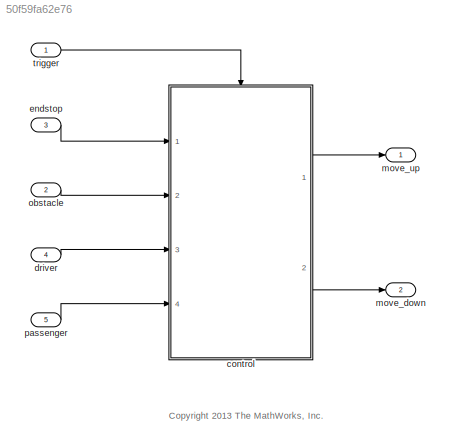
MODEL slx_50f59fa62e76
KIND model
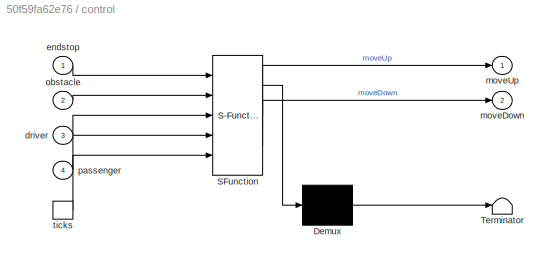
BLOCK [SubSystem] control
  ErrorFcn = Stateflow.Translate.translate
  PermitHierarchicalResolution = ExplicitOnly
  Ports = [4, 2, 0, 1]
  RequestExecContextInheritance = off
  SFBlockType = Chart
  TreatAsAtomicUnit = on
BLOCK [Demux] control/ Demux 
  Outputs = 1
  Ports = [1, 1]
BLOCK [S-Function] control/ SFunction 
  EnableBusSupport = off
  FunctionName = sf_sfun
  PortCounts = [5 3]
  Ports = [5, 3]
  Tag = Stateflow S-Function slexPowerWindowControl 2
BLOCK [Terminator] control/ Terminator 
BLOCK [Inport] control/driver
  IconDisplay = Port number
  Port = 3
BLOCK [Inport] control/endstop
  IconDisplay = Port number
BLOCK [Outport] control/moveDown
  IconDisplay = Port number
  Port = 2
BLOCK [Outport] control/moveUp
  IconDisplay = Port number
BLOCK [Inport] control/obstacle
  IconDisplay = Port number
  Port = 2
BLOCK [Inport] control/passenger
  IconDisplay = Port number
  Port = 4
BLOCK [TriggerPort] control/ticks
  Ports = [0, 1]
  ShowOutputPort = on
  TriggerType = either
BLOCK [Inport] driver
  IconDisplay = Port number
  OutDataTypeStr = boolean
  Port = 4
BLOCK [Inport] endstop
  IconDisplay = Port number
  OutDataTypeStr = boolean
  Port = 3
BLOCK [Outport] move_down
  IconDisplay = Port number
  OutDataTypeStr = boolean
  Port = 2
BLOCK [Outport] move_up
  IconDisplay = Port number
  OutDataTypeStr = boolean
BLOCK [Inport] obstacle
  IconDisplay = Port number
  OutDataTypeStr = boolean
  Port = 2
BLOCK [Inport] passenger
  IconDisplay = Port number
  OutDataTypeStr = boolean
  Port = 5
BLOCK [Inport] trigger
  IconDisplay = Port number
  OutDataTypeStr = double
  SampleTime = 0.01
ANNOTATION (root): <copyright redacted>
LINE control:1 -> move_up:1
LINE control:2 -> move_down:1
LINE driver:1 -> control:3
LINE endstop:1 -> control:1
LINE obstacle:1 -> control:2
LINE passenger:1 -> control:4
LINE trigger:1 -> control:trigger
CHART control states=20 transitions=33
  STATE_LABEL 'safe'
  STATE_LABEL 'driverNeutral\nentry:\nmoveUp = 0;\nmoveDown = 0;'
  STATE_LABEL 'passengerneutral\nentry:\nmoveUp = 0;\nmoveDown = 0;'
  STATE_LABEL 'passengerDown\nentry: moveDown = 1;\nexit: moveDown = 0;'
  STATE_LABEL 'iniPassengerDown'
  STATE_LABEL 'passengerDown'
  STATE_LABEL 'autoPassengerDown'
  STATE_LABEL 'after(100,ticks)'
  STATE_LABEL '[passenger[1]]'
  STATE_LABEL 'passengerUp\nentry: moveUp = 1;\nexit: moveUp = 0;'
  STATE_LABEL 'iniPassengerUp'
  STATE_LABEL 'PassengerUp'
  STATE_LABEL 'autoPassengerUp'
  STATE_LABEL 'after(100,ticks)'
  STATE_LABEL '[passenger[1]]'
  STATE_LABEL '[passenger[2]]'
  STATE_LABEL '[passenger[3]]'
  STATE_LABEL '[passenger[1]]'
  STATE_LABEL '[endstop]'
  STATE_LABEL '[passenger[1]]'
  STATE_LABEL '[endstop]'
  STATE_LABEL '[passenger[2]]'
  STATE_LABEL '[passenger[3]]'
  STATE_LABEL 'driverDown\nentry: moveDown = 1;\nexit: moveDown = 0;'
  STATE_LABEL 'iniDriverDown'
  STATE_LABEL 'autoDriverDown'
  STATE_LABEL 'DriverDown'
  STATE_LABEL 'after(100,ticks)'
  STATE_LABEL '[driver[1]]'
  STATE_LABEL 'driverUp\nentry: moveUp = 1;\nexit: moveUp = 0;'
  STATE_LABEL 'iniDriverUp'
  STATE_LABEL 'DriverUp'
  STATE_LABEL 'autoDriverUp'
  STATE_LABEL 'after(100,ticks)'
  STATE_LABEL '[driver[1]]'
  STATE_LABEL '[driver[3]]'
  STATE_LABEL '[driver[1]]'
  STATE_LABEL '[endstop]'
  STATE_LABEL '[driver[1]]'
  STATE_LABEL '[endstop]'
